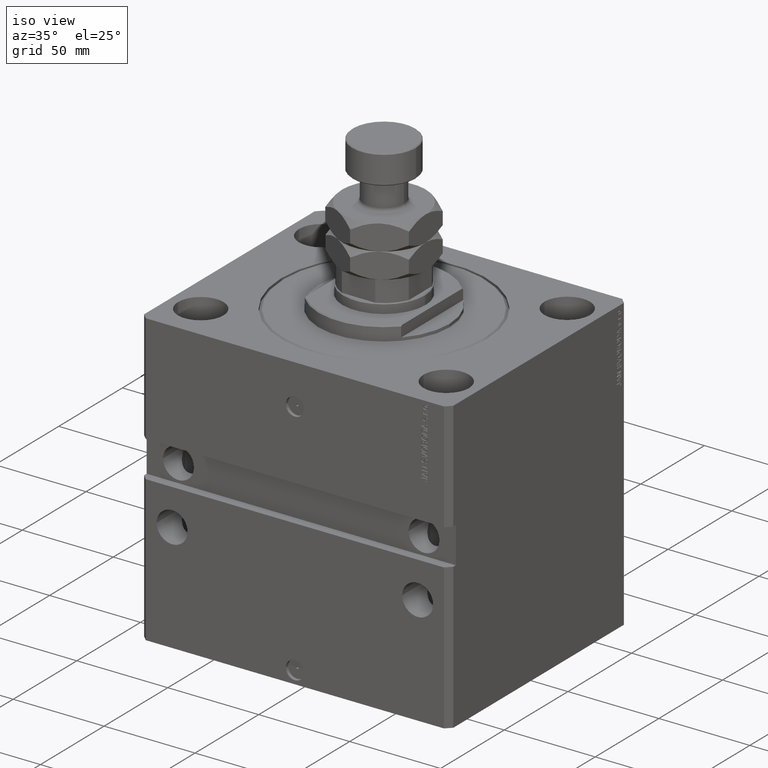
[diagram: clean part render]
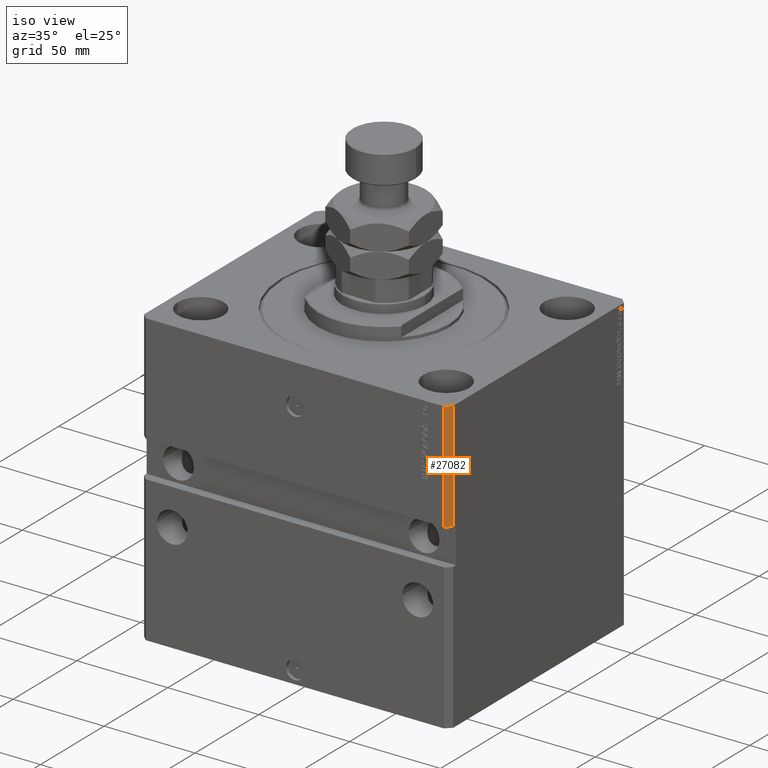
[diagram: same view with one face highlighted and labeled with its STEP entity id]
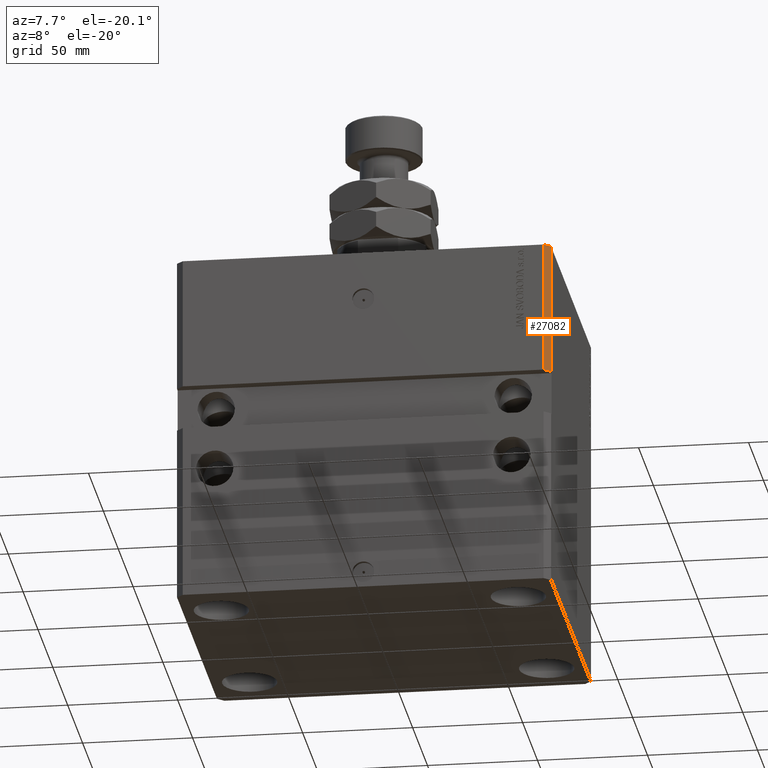
[diagram: same view with one face highlighted and labeled with its STEP entity id]
A machine part, iso view. The second image highlights one B-rep face of the part: STEP entity #27082.
A second angle (auxiliary view) of the same face is appended — the face is thin or edge-on in the first view.
In plain terms, the highlighted planar face has unit normal (0.7071, -0.7071, 0).
Its self-contained STEP definition (entity closure, byte-faithful):
#83 = DIRECTION ( 'NONE',  ( 0.7071067811865491270, -0.7071067811865459074, 0.000000000000000000 ) ) ;
#981 = VECTOR ( 'NONE', #20900, 1000.000000000000000 ) ;
#1660 = VERTEX_POINT ( 'NONE', #22122 ) ;
#3571 = EDGE_CURVE ( 'NONE', #25714, #9813, #11875, .T. ) ;
#7185 = ORIENTED_EDGE ( 'NONE', *, *, #17341, .F. ) ;
#8231 = CARTESIAN_POINT ( 'NONE',  ( 82.00000000000001421, -70.00000000000000000, 0.000000000000000000 ) ) ;
#9178 = ORIENTED_EDGE ( 'NONE', *, *, #30258, .T. ) ;
#9813 = VERTEX_POINT ( 'NONE', #24189 ) ;
#11875 = LINE ( 'NONE', #8231, #45363 ) ;
#11889 = LINE ( 'NONE', #27409, #20926 ) ;
#12666 = VECTOR ( 'NONE', #42327, 1000.000000000000000 ) ;
#14884 = DIRECTION ( 'NONE',  ( 0.7071067811865459074, 0.7071067811865491270, 0.000000000000000000 ) ) ;
#17341 = EDGE_CURVE ( 'NONE', #1660, #43329, #11889, .T. ) ;
#18547 = PLANE ( 'NONE',  #27384 ) ;
#19653 = DIRECTION ( 'NONE',  ( -0.7071067811865459074, -0.7071067811865491270, -1.731719623548276812E-16 ) ) ;
#20829 = CARTESIAN_POINT ( 'NONE',  ( 82.00000000000001421, -69.99999999999998579, -59.99999999999998579 ) ) ;
#20900 = DIRECTION ( 'NONE',  ( 0.000000000000000000, 0.000000000000000000, 1.000000000000000000 ) ) ;
#20926 = VECTOR ( 'NONE', #19653, 1000.000000000000114 ) ;
#21586 = ORIENTED_EDGE ( 'NONE', *, *, #3571, .F. ) ;
#22122 = CARTESIAN_POINT ( 'NONE',  ( 85.00000000000001421, -66.99999999999998579, -59.99999999999998579 ) ) ;
#22258 = EDGE_CURVE ( 'NONE', #43329, #25714, #46128, .T. ) ;
#24189 = CARTESIAN_POINT ( 'NONE',  ( 85.00000000000001421, -66.99999999999998579, 0.000000000000000000 ) ) ;
#25714 = VERTEX_POINT ( 'NONE', #40432 ) ;
#27082 = ADVANCED_FACE ( 'NONE', ( #40629 ), #18547, .T. ) ;
#27384 = AXIS2_PLACEMENT_3D ( 'NONE', #33345, #83, #14884 ) ;
#27409 = CARTESIAN_POINT ( 'NONE',  ( 82.00000000000000000, -70.00000000000001421, -59.99999999999998579 ) ) ;
#27451 = EDGE_LOOP ( 'NONE', ( #7185, #9178, #21586, #36108 ) ) ;
#30258 = EDGE_CURVE ( 'NONE', #1660, #9813, #31641, .T. ) ;
#31641 = LINE ( 'NONE', #42083, #12666 ) ;
#33345 = CARTESIAN_POINT ( 'NONE',  ( 82.00000000000001421, -70.00000000000000000, -160.0000000000000000 ) ) ;
#34196 = DIRECTION ( 'NONE',  ( 0.7071067811865459074, 0.7071067811865491270, 0.000000000000000000 ) ) ;
#36108 = ORIENTED_EDGE ( 'NONE', *, *, #22258, .F. ) ;
#39102 = CARTESIAN_POINT ( 'NONE',  ( 82.00000000000001421, -70.00000000000000000, -160.0000000000000000 ) ) ;
#40432 = CARTESIAN_POINT ( 'NONE',  ( 82.00000000000001421, -70.00000000000000000, 0.000000000000000000 ) ) ;
#40629 = FACE_OUTER_BOUND ( 'NONE', #27451, .T. ) ;
#42083 = CARTESIAN_POINT ( 'NONE',  ( 85.00000000000001421, -66.99999999999998579, -160.0000000000000000 ) ) ;
#42327 = DIRECTION ( 'NONE',  ( 0.000000000000000000, 0.000000000000000000, 1.000000000000000000 ) ) ;
#43329 = VERTEX_POINT ( 'NONE', #20829 ) ;
#45363 = VECTOR ( 'NONE', #34196, 1000.000000000000000 ) ;
#46128 = LINE ( 'NONE', #39102, #981 ) ;